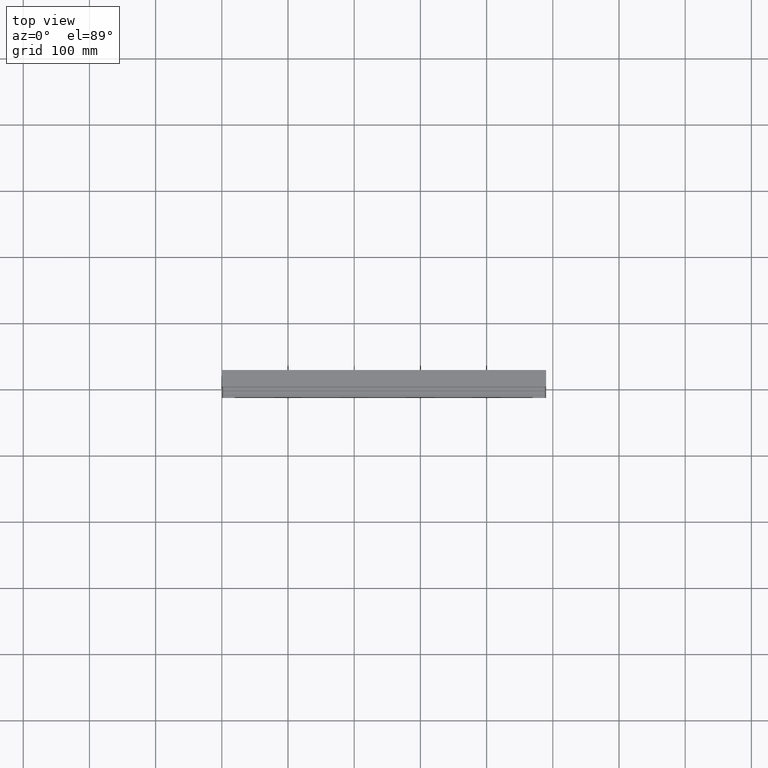
[diagram: clean part render]
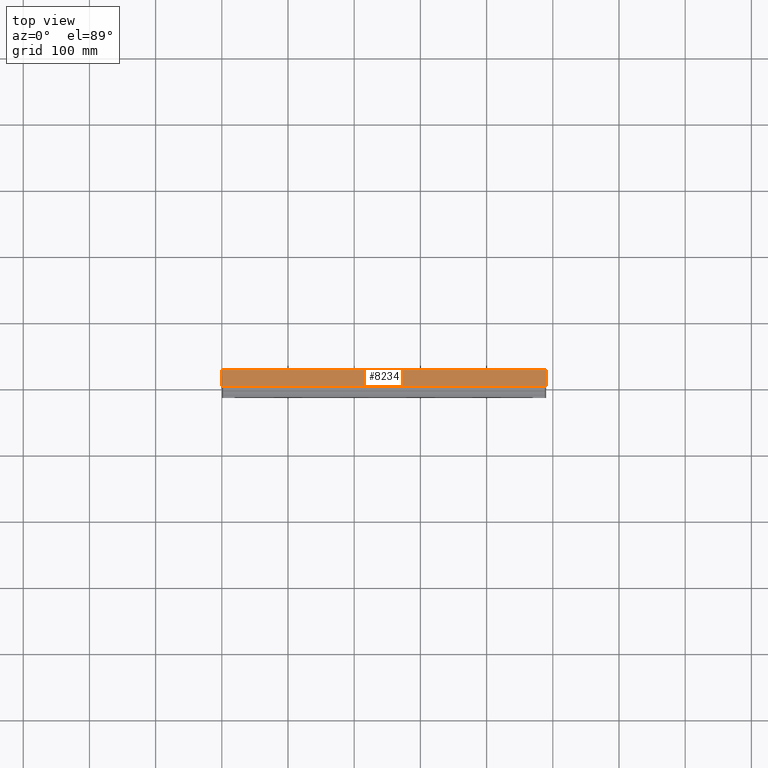
[diagram: same view with one face highlighted and labeled with its STEP entity id]
A machine part, top view. The second image highlights one B-rep face of the part: STEP entity #8234.
In plain terms, the highlighted planar face has unit normal (0, 0, -1).
Its self-contained STEP definition (entity closure, byte-faithful):
#543 = CARTESIAN_POINT ( 'NONE',  ( -2.347239698365760600E-015, 4.166666666666667900, 0.0000000000000000000 ) ) ;
#1145 = FACE_OUTER_BOUND ( 'NONE', #19891, .T. ) ;
#1987 = ORIENTED_EDGE ( 'NONE', *, *, #48376, .F. ) ;
#3224 = VECTOR ( 'NONE', #43725, 1000.000000000000000 ) ;
#5597 = CARTESIAN_POINT ( 'NONE',  ( -1.794228791270285600E-028, 12.50000000000000000, -1.876249176170376600E-014 ) ) ;
#8234 = ADVANCED_FACE ( 'NONE', ( #1145 ), #64212, .F. ) ;
#8940 = CARTESIAN_POINT ( 'NONE',  ( 490.0000000000000600, 12.49999999999956300, 0.0000000000000000000 ) ) ;
#14436 = DIRECTION ( 'NONE',  ( 3.829079951368142600E-017, 3.061616997868383100E-016, -1.000000000000000000 ) ) ;
#15854 = EDGE_CURVE ( 'NONE', #67536, #49933, #71066, .T. ) ;
#19648 = LINE ( 'NONE', #65952, #28267 ) ;
#19891 = EDGE_LOOP ( 'NONE', ( #54869, #35795, #67070, #1987 ) ) ;
#22999 = VERTEX_POINT ( 'NONE', #34177 ) ;
#23448 = DIRECTION ( 'NONE',  ( -1.000000000000000000, 0.0000000000000000000, -3.829079951368142600E-017 ) ) ;
#25265 = VERTEX_POINT ( 'NONE', #50907 ) ;
#28267 = VECTOR ( 'NONE', #48416, 1000.000000000000000 ) ;
#30986 = DIRECTION ( 'NONE',  ( 0.0000000000000000000, 1.000000000000000000, 3.061616997868383100E-016 ) ) ;
#32635 = CARTESIAN_POINT ( 'NONE',  ( 490.0000000000000600, 12.49999999999956300, 0.0000000000000000000 ) ) ;
#32733 = CARTESIAN_POINT ( 'NONE',  ( 2.041077998578923800E-016, -4.166666666666667900, 0.0000000000000000000 ) ) ;
#34177 = CARTESIAN_POINT ( 'NONE',  ( 1.377727649040772400E-015, -12.50000000000000000, -1.110223024625156500E-013 ) ) ;
#35795 = ORIENTED_EDGE ( 'NONE', *, *, #50220, .F. ) ;
#36951 = CARTESIAN_POINT ( 'NONE',  ( 490.0000000000001100, 12.50000000000000000, 1.665334536937734800E-013 ) ) ;
#43725 = DIRECTION ( 'NONE',  ( -3.061616997868383600E-016, -1.000000000000000000, -3.061616997868382600E-016 ) ) ;
#43829 = CARTESIAN_POINT ( 'NONE',  ( 1.377727649040772400E-015, -12.50000000000000000, -1.110223024625156500E-013 ) ) ;
#48376 = EDGE_CURVE ( 'NONE', #67536, #25265, #54062, .T. ) ;
#48416 = DIRECTION ( 'NONE',  ( -1.000000000000000000, 0.0000000000000000000, -3.829079951368142600E-017 ) ) ;
#48716 = VECTOR ( 'NONE', #23448, 1000.000000000000000 ) ;
#49933 = VERTEX_POINT ( 'NONE', #69792 ) ;
#50220 = EDGE_CURVE ( 'NONE', #22999, #49933, #62748, .T. ) ;
#50907 = CARTESIAN_POINT ( 'NONE',  ( 490.0000000000001100, -12.50000000000000000, 1.110223024625156500E-013 ) ) ;
#51631 = CARTESIAN_POINT ( 'NONE',  ( 490.0000000000001100, 12.50000000000000000, 1.665334536937734800E-013 ) ) ;
#53473 = AXIS2_PLACEMENT_3D ( 'NONE', #8940, #14436, #30986 ) ;
#54062 = LINE ( 'NONE', #32635, #3224 ) ;
#54234 = EDGE_CURVE ( 'NONE', #25265, #22999, #19648, .T. ) ;
#54869 = ORIENTED_EDGE ( 'NONE', *, *, #15854, .T. ) ;
#62748 = B_SPLINE_CURVE_WITH_KNOTS ( 'NONE', 3,
 ( #43829, #32733, #543, #5597 ),
 .UNSPECIFIED., .F., .F.,
 ( 4, 4 ),
 ( 0.0000000000000000000, 1.000000000000000000 ),
 .UNSPECIFIED. ) ;
#64212 = PLANE ( 'NONE',  #53473 ) ;
#65952 = CARTESIAN_POINT ( 'NONE',  ( 490.0000000000001100, -12.50000000000000000, 1.110223024625156500E-013 ) ) ;
#67070 = ORIENTED_EDGE ( 'NONE', *, *, #54234, .F. ) ;
#67536 = VERTEX_POINT ( 'NONE', #36951 ) ;
#69792 = CARTESIAN_POINT ( 'NONE',  ( -1.794228791270285600E-028, 12.50000000000000000, -1.876249176170376600E-014 ) ) ;
#71066 = LINE ( 'NONE', #51631, #48716 ) ;